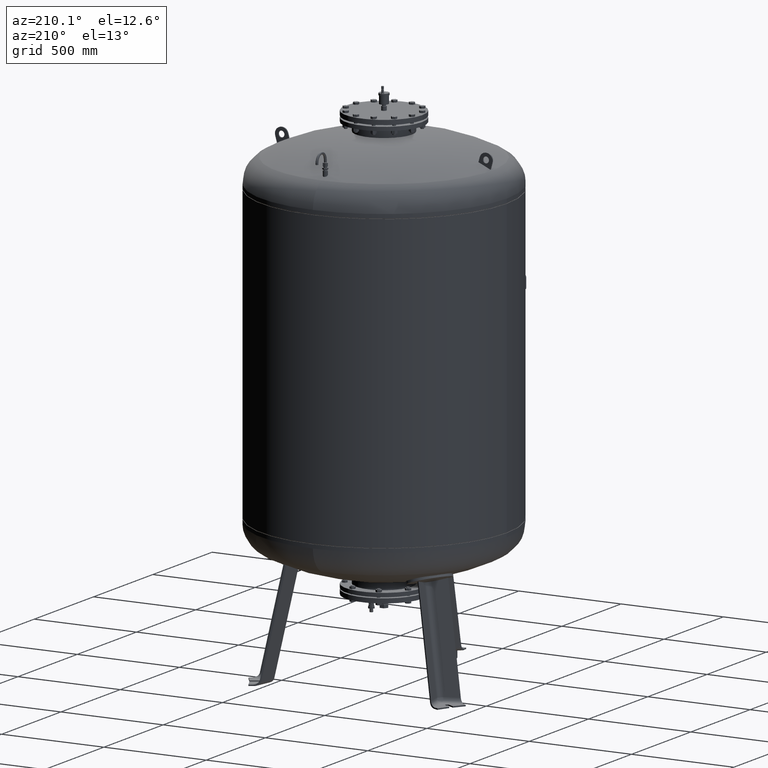
[diagram: clean part render]
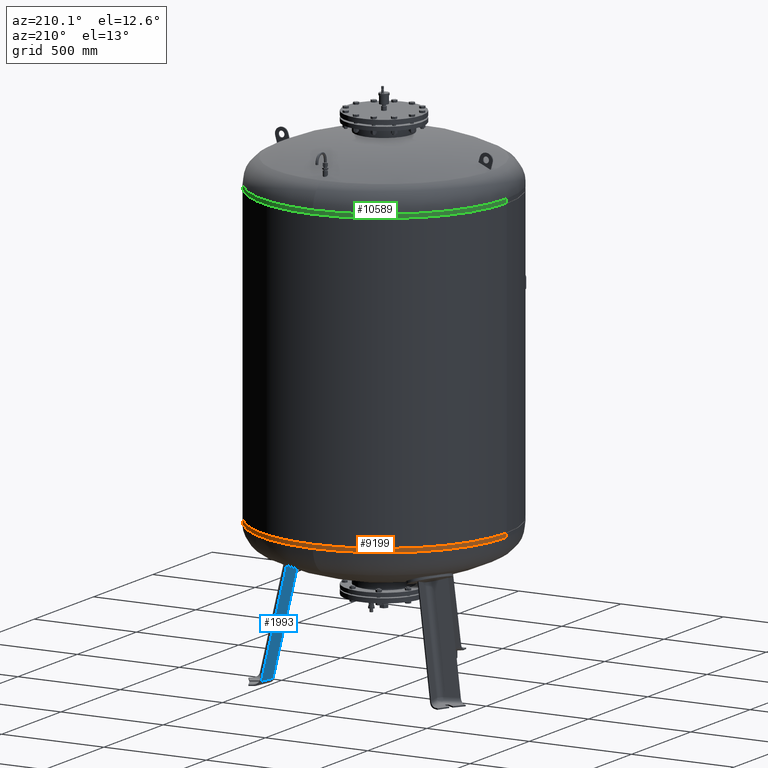
[diagram: same view with three faces highlighted in distinct colors, each labeled with its STEP entity id]
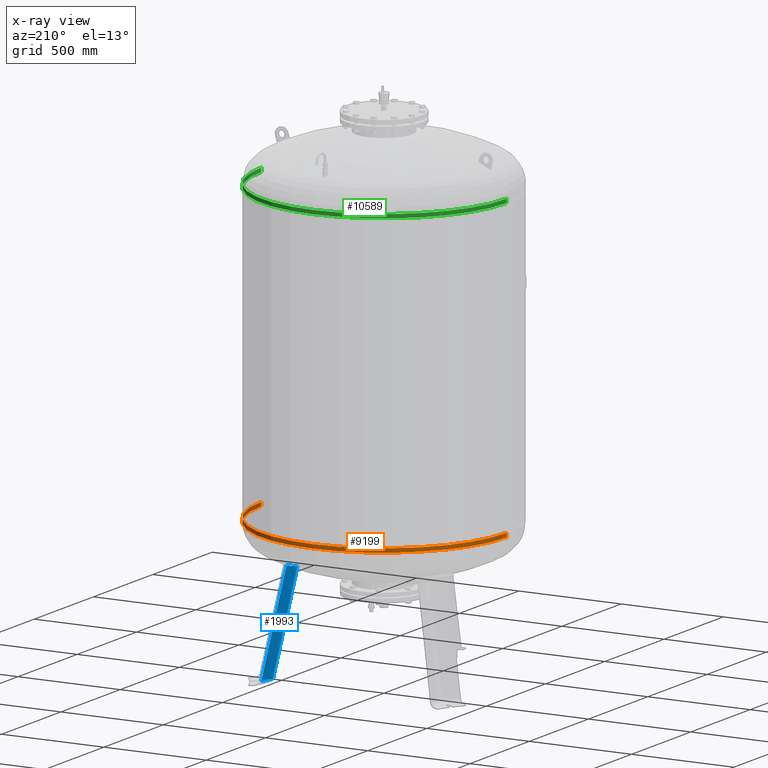
[diagram: x-ray of the same camera — body ghosted, the three highlighted faces saturated]
A machine part, auxiliary view with three faces highlighted in distinct colors.
The next image is the same camera in x-ray (body ghosted, the three faces saturated) — at least one of them is partly hidden behind the body in this view.
Their STEP definitions:

[orange] entity #9199 — the highlighted cylindrical surface (partial cylindrical patch) has radius 600 mm, axis along (-0, -0, 1).
#9149=CARTESIAN_POINT('',(-3.693994E-014,-4.510566E-014,705.543771283136150));
#9150=DIRECTION('',(-1.504413E-016,-1.836970E-016,1.0));
#9151=DIRECTION('',(-1.0,0.0,0.0));
#9152=AXIS2_PLACEMENT_3D('',#9149,#9150,#9151);
#9153=CYLINDRICAL_SURFACE('',#9152,599.999999999999890);
#9154=CARTESIAN_POINT('',(-600.000000000000110,-4.684274E-014,715.0));
#9155=VERTEX_POINT('',#9154);
#9156=CARTESIAN_POINT('',(-600.0,-4.336858E-014,696.087542566272190));
#9157=VERTEX_POINT('',#9156);
#9158=CARTESIAN_POINT('',(-600.000000000000110,-4.684274E-014,715.0));
#9159=DIRECTION('',(0.0,0.0,-1.0));
#9160=VECTOR('',#9159,18.912457433727809);
#9161=LINE('',#9158,#9160);
#9162=EDGE_CURVE('',#9155,#9157,#9161,.T.);
#9163=ORIENTED_EDGE('',*,*,#9162,.F.);
#9164=CARTESIAN_POINT('',(599.999999999999890,2.663364E-014,715.000000000000110));
#9165=VERTEX_POINT('',#9164);
#9166=CARTESIAN_POINT('',(-3.836254E-014,-4.684274E-014,715.0));
#9167=DIRECTION('',(0.0,0.0,1.0));
#9168=DIRECTION('',(-1.0,0.0,0.0));
#9169=AXIS2_PLACEMENT_3D('',#9166,#9167,#9168);
#9170=CIRCLE('',#9169,600.0);
#9171=EDGE_CURVE('',#9165,#9155,#9170,.T.);
#9172=ORIENTED_EDGE('',*,*,#9171,.F.);
#9173=CARTESIAN_POINT('',(599.999999999999890,3.010780E-014,696.087542566272300));
#9174=VERTEX_POINT('',#9173);
#9175=CARTESIAN_POINT('',(599.999999999999890,2.663364E-014,715.000000000000110));
#9176=DIRECTION('',(0.0,0.0,-1.0));
#9177=VECTOR('',#9176,18.912457433727809);
#9178=LINE('',#9175,#9177);
#9179=EDGE_CURVE('',#9165,#9174,#9178,.T.);
#9180=ORIENTED_EDGE('',*,*,#9179,.T.);
#9181=CARTESIAN_POINT('',(-1.445307E-013,600.0,696.087542566272420));
#9182=VERTEX_POINT('',#9181);
#9183=CARTESIAN_POINT('',(-3.551733E-014,-4.336858E-014,696.087542566272300));
#9184=DIRECTION('',(0.0,0.0,1.0));
#9185=DIRECTION('',(-1.0,0.0,0.0));
#9186=AXIS2_PLACEMENT_3D('',#9183,#9184,#9185);
#9187=CIRCLE('',#9186,600.0);
#9188=EDGE_CURVE('',#9174,#9182,#9187,.T.);
#9189=ORIENTED_EDGE('',*,*,#9188,.T.);
#9190=CARTESIAN_POINT('',(-3.551733E-014,-4.336858E-014,696.087542566272300));
#9191=DIRECTION('',(0.0,0.0,1.0));
#9192=DIRECTION('',(-1.0,0.0,0.0));
#9193=AXIS2_PLACEMENT_3D('',#9190,#9191,#9192);
#9194=CIRCLE('',#9193,600.0);
#9195=EDGE_CURVE('',#9182,#9157,#9194,.T.);
#9196=ORIENTED_EDGE('',*,*,#9195,.T.);
#9197=EDGE_LOOP('',(#9163,#9172,#9180,#9189,#9196));
#9198=FACE_OUTER_BOUND('',#9197,.T.);
#9199=ADVANCED_FACE('',(#9198),#9153,.T.);

[blue] entity #1993 — the highlighted planar face has unit normal (-0.9697, 0.1854, -0.1588).
#1208=CARTESIAN_POINT('',(398.505553854202280,248.710057248237350,21.029948423057281));
#1209=VERTEX_POINT('',#1208);
#1250=CARTESIAN_POINT('',(412.743118968847450,323.167840413704710,21.029948423057284));
#1251=VERTEX_POINT('',#1250);
#1252=CARTESIAN_POINT('',(398.505553854202280,248.710057248237350,21.029948423057281));
#1253=DIRECTION('',(0.187813845079449,0.982204642422582,4.686537E-017));
#1254=VECTOR('',#1253,75.806792138366575);
#1255=LINE('',#1252,#1254);
#1256=EDGE_CURVE('',#1209,#1251,#1255,.T.);
#1742=CARTESIAN_POINT('',(309.243106825412270,197.174359427640810,505.942739782580020));
#1743=VERTEX_POINT('',#1742);
#1744=CARTESIAN_POINT('',(320.100983866293630,269.680878773943680,524.302688812935000));
#1745=VERTEX_POINT('',#1744);
#1746=CARTESIAN_POINT('',(116.635947881441950,19.973877625133753,1475.203780025492300));
#1747=DIRECTION('',(0.969740897595359,-0.185430570007245,0.158802063077709));
#1748=DIRECTION('',(0.180056805991956,0.103955845408880,-0.978147600733805));
#1749=AXIS2_PLACEMENT_3D('',#1746,#1747,#1748);
#1750=CIRCLE('',#1749,1003.974348556914600);
#1751=EDGE_CURVE('',#1743,#1745,#1750,.T.);
#1965=CARTESIAN_POINT('',(309.243106825412270,197.174359427640810,505.942739782580020));
#1966=DIRECTION('',(0.180056805991956,0.103955845408880,-0.978147600733806));
#1967=VECTOR('',#1966,495.746031576156330);
#1968=LINE('',#1965,#1967);
#1969=EDGE_CURVE('',#1743,#1209,#1968,.T.);
#1977=CARTESIAN_POINT('',(402.334414647440890,232.287882600950410,-21.527282742766886));
#1978=DIRECTION('',(-0.969740897595359,0.185430570007245,-0.158802063077709));
#1979=DIRECTION('',(0.180056805991956,0.103955845408880,-0.978147600733806));
#1980=AXIS2_PLACEMENT_3D('',#1977,#1978,#1979);
#1981=PLANE('',#1980);
#1982=ORIENTED_EDGE('',*,*,#1751,.T.);
#1983=CARTESIAN_POINT('',(412.743118968847450,323.167840413704710,21.029948423057284));
#1984=DIRECTION('',(-0.180056805991956,-0.103955845408880,0.978147600733806));
#1985=VECTOR('',#1984,514.516152789541020);
#1986=LINE('',#1983,#1985);
#1987=EDGE_CURVE('',#1251,#1745,#1986,.T.);
#1988=ORIENTED_EDGE('',*,*,#1987,.F.);
#1989=ORIENTED_EDGE('',*,*,#1256,.F.);
#1990=ORIENTED_EDGE('',*,*,#1969,.F.);
#1991=EDGE_LOOP('',(#1982,#1988,#1989,#1990));
#1992=FACE_OUTER_BOUND('',#1991,.T.);
#1993=ADVANCED_FACE('',(#1992),#1981,.T.);

[green] entity #10589 — the highlighted cylindrical surface (partial cylindrical patch) has radius 600 mm, axis along (0, -0, -1).
#10539=CARTESIAN_POINT('',(6.869496E-015,-4.510566E-014,2154.456228716863700));
#10540=DIRECTION('',(2.797667E-017,-1.836970E-016,-1.0));
#10541=DIRECTION('',(1.0,0.0,0.0));
#10542=AXIS2_PLACEMENT_3D('',#10539,#10540,#10541);
#10543=CYLINDRICAL_SURFACE('',#10542,599.999999999999890);
#10544=CARTESIAN_POINT('',(600.000000000000110,-4.684274E-014,2145.0));
#10545=VERTEX_POINT('',#10544);
#10546=CARTESIAN_POINT('',(600.0,-4.336858E-014,2163.912457433727900));
#10547=VERTEX_POINT('',#10546);
#10548=CARTESIAN_POINT('',(600.000000000000110,-4.684274E-014,2145.0));
#10549=DIRECTION('',(0.0,0.0,1.0));
#10550=VECTOR('',#10549,18.912457433727923);
#10551=LINE('',#10548,#10550);
#10552=EDGE_CURVE('',#10545,#10547,#10551,.T.);
#10553=ORIENTED_EDGE('',*,*,#10552,.F.);
#10554=CARTESIAN_POINT('',(-599.999999999999890,2.663364E-014,2145.0));
#10555=VERTEX_POINT('',#10554);
#10556=CARTESIAN_POINT('',(7.134050E-015,-4.684274E-014,2145.0));
#10557=DIRECTION('',(0.0,0.0,-1.0));
#10558=DIRECTION('',(1.0,0.0,0.0));
#10559=AXIS2_PLACEMENT_3D('',#10556,#10557,#10558);
#10560=CIRCLE('',#10559,600.0);
#10561=EDGE_CURVE('',#10555,#10545,#10560,.T.);
#10562=ORIENTED_EDGE('',*,*,#10561,.F.);
#10563=CARTESIAN_POINT('',(-599.999999999999890,3.010780E-014,2163.912457433727500));
#10564=VERTEX_POINT('',#10563);
#10565=CARTESIAN_POINT('',(-599.999999999999890,2.663364E-014,2145.0));
#10566=DIRECTION('',(0.0,0.0,1.0));
#10567=VECTOR('',#10566,18.912457433727468);
#10568=LINE('',#10565,#10567);
#10569=EDGE_CURVE('',#10555,#10564,#10568,.T.);
#10570=ORIENTED_EDGE('',*,*,#10569,.T.);
#10571=CARTESIAN_POINT('',(1.156183E-013,600.0,2163.912457433727500));
#10572=VERTEX_POINT('',#10571);
#10573=CARTESIAN_POINT('',(6.604942E-015,-4.336858E-014,2163.912457433727500));
#10574=DIRECTION('',(0.0,0.0,-1.0));
#10575=DIRECTION('',(1.0,0.0,0.0));
#10576=AXIS2_PLACEMENT_3D('',#10573,#10574,#10575);
#10577=CIRCLE('',#10576,600.0);
#10578=EDGE_CURVE('',#10564,#10572,#10577,.T.);
#10579=ORIENTED_EDGE('',*,*,#10578,.T.);
#10580=CARTESIAN_POINT('',(6.604942E-015,-4.336858E-014,2163.912457433727500));
#10581=DIRECTION('',(0.0,0.0,-1.0));
#10582=DIRECTION('',(1.0,0.0,0.0));
#10583=AXIS2_PLACEMENT_3D('',#10580,#10581,#10582);
#10584=CIRCLE('',#10583,600.0);
#10585=EDGE_CURVE('',#10572,#10547,#10584,.T.);
#10586=ORIENTED_EDGE('',*,*,#10585,.T.);
#10587=EDGE_LOOP('',(#10553,#10562,#10570,#10579,#10586));
#10588=FACE_OUTER_BOUND('',#10587,.T.);
#10589=ADVANCED_FACE('',(#10588),#10543,.T.);